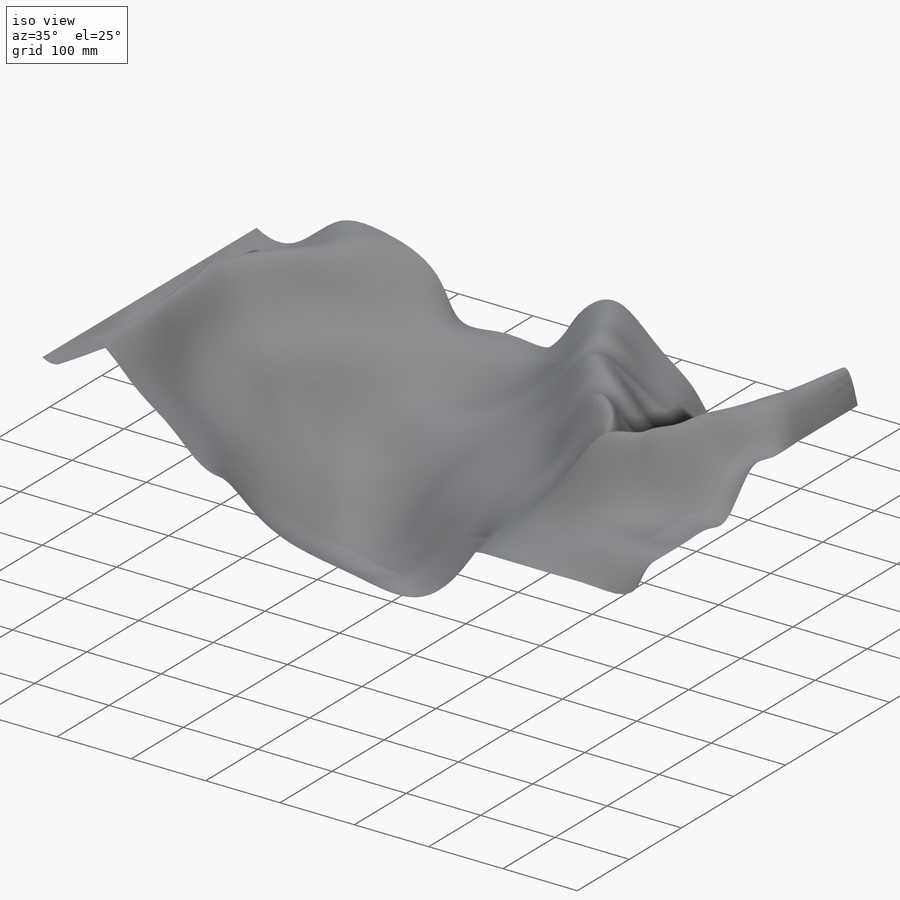
[diagram: iso view]
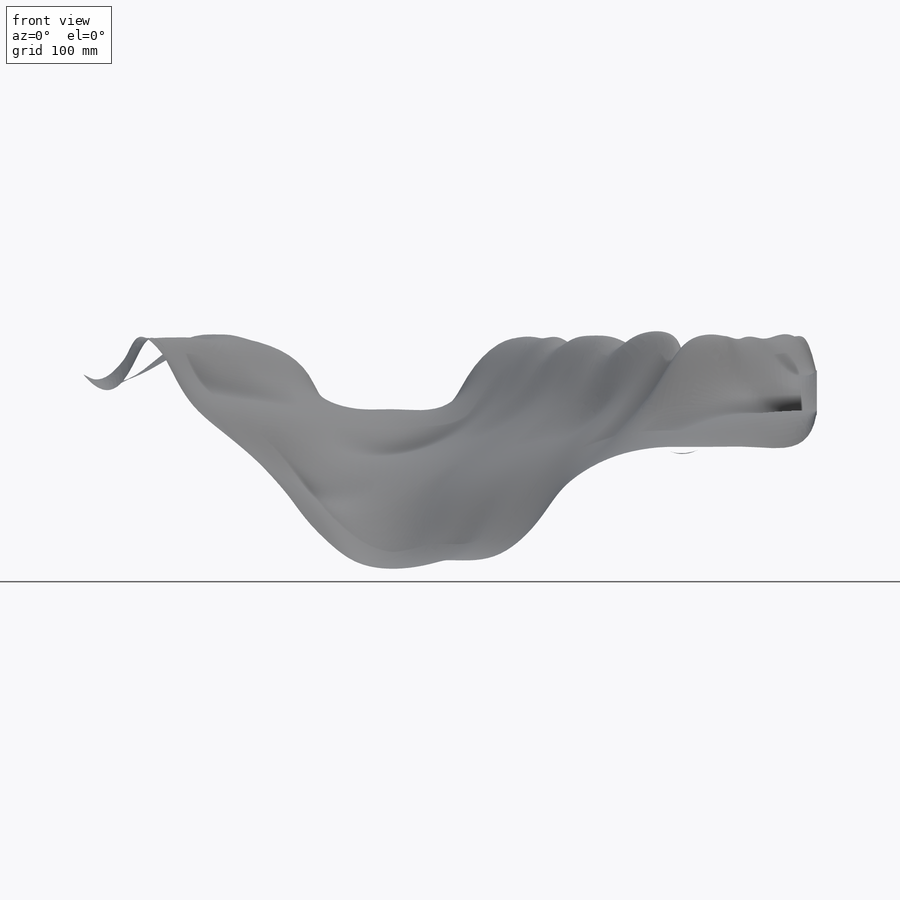
[diagram: front view]
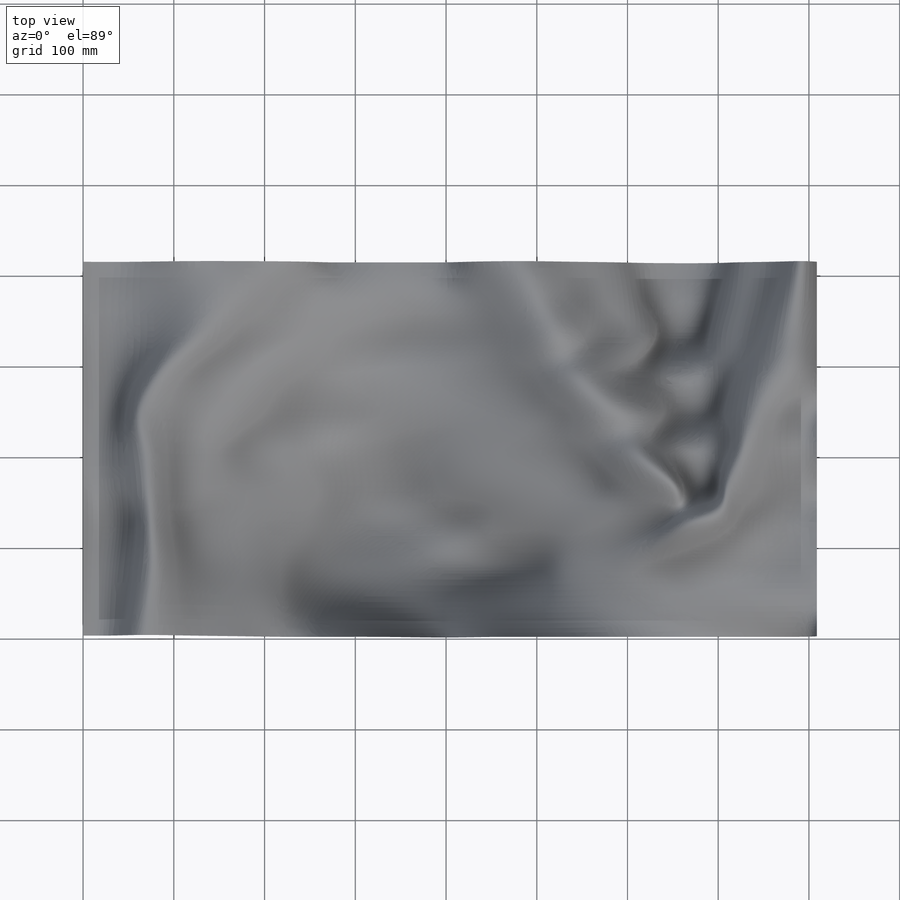
[diagram: top view]
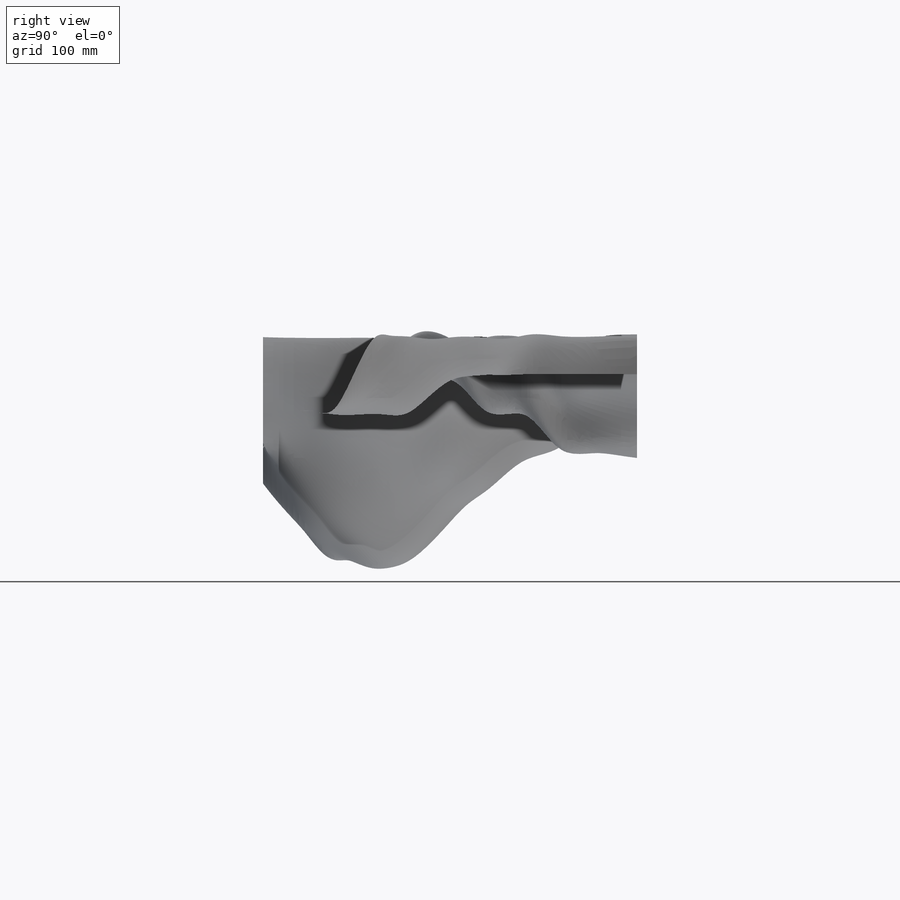
[diagram: right view]
SOLIDWORKS PART (.sldprt)
format: sldprt  version: not decoded by parser v0  size: 3,066,880 bytes
history: native  units: mm
features: sketch x10, plane x10, extrude x5, material x1 + 19 further entries (+20 scaffold rows collapsed; 4 parser-record rows omitted)
feature tree (69):
  scaffold x20  (default folders/planes/origin — collapsed)
  material  "Material <not specified>"
  sketch  "Image"
  "For Loft To Surface"
  "For Ground Down"
  parser-record x4  (decoder bookkeeping rows leaked as tree rows — omitted from the tree; the rows remain in map.json)
  "Guide Lines"
  plane  "10"  Offset=10mm
  plane  "20"  Offset=50mm
  plane  "30"  Offset=90mm
  plane  "40"  Offset=130mm
  plane  "50"  Offset=170mm
  plane  "60"  Offset=210mm
  plane  "70"  Offset=250mm
  "s10"
  "s20"
  "s30"
  "s40"
  "s50"
  "s60"
  "s70"
  sketch  "3DSketch2"
  sketch  "3DSketch3"
  sketch  "3DSketch4"
  sketch  "3DSketch5"
  sketch  "3DSketch6"
  sketch  "3DSketch7"
  extrude  "Extrude1"  Depth=50mm
  "A"
  "B"
  "C"
  sketch  "ABC"
  plane  "ABC Plane"
  "sABC"
  extrude  "ABC Outcrop"  Depth=1mm
  plane  "D-E Cutting Plane"
  "Image1"
  sketch  "Sketch Picture3"  dims[D1=~228.292422mm]
  plane  "Horizontal Plane through A"
  sketch  "Strike"
  "Dip"
  "Sketch4"
  extrude  "Extrusion showing AB Outcrop"  Depth=125mm
  "Sketch5"
  extrude  "Extrusion showing BC Outcrop"  Depth=55mm
  "Sketch6"
  extrude  "Extrusion showing AC Outcrop"  Depth=95mm
decode coverage: 6 of 15 modeling features carry decoded parameters; 19 rows unclassified (native names shown)
note: ~ marks probable driven/reference dimensions
note: suppression state not decoded; provenance and decode notes live in map.json
